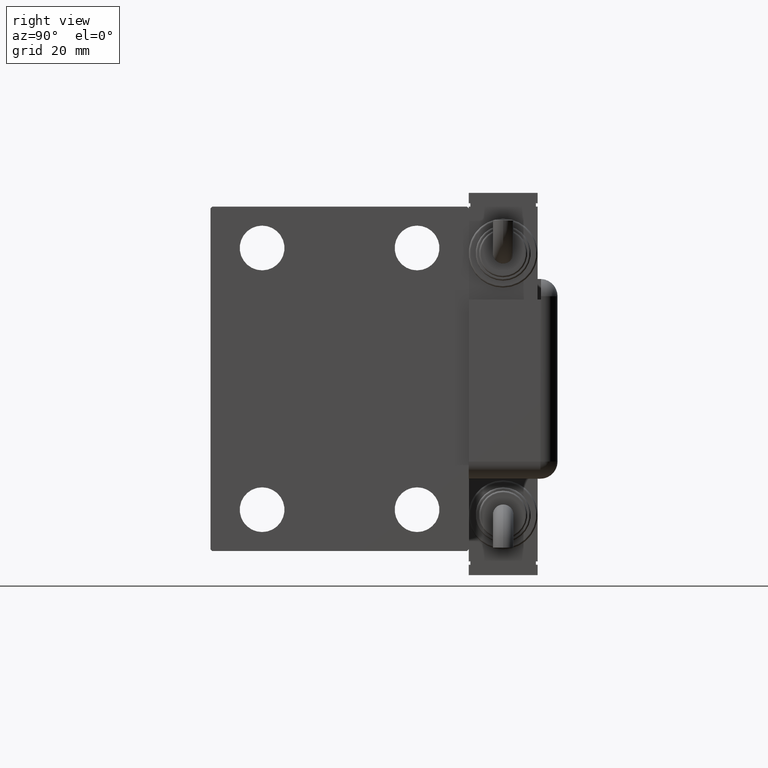
[diagram: clean part render]
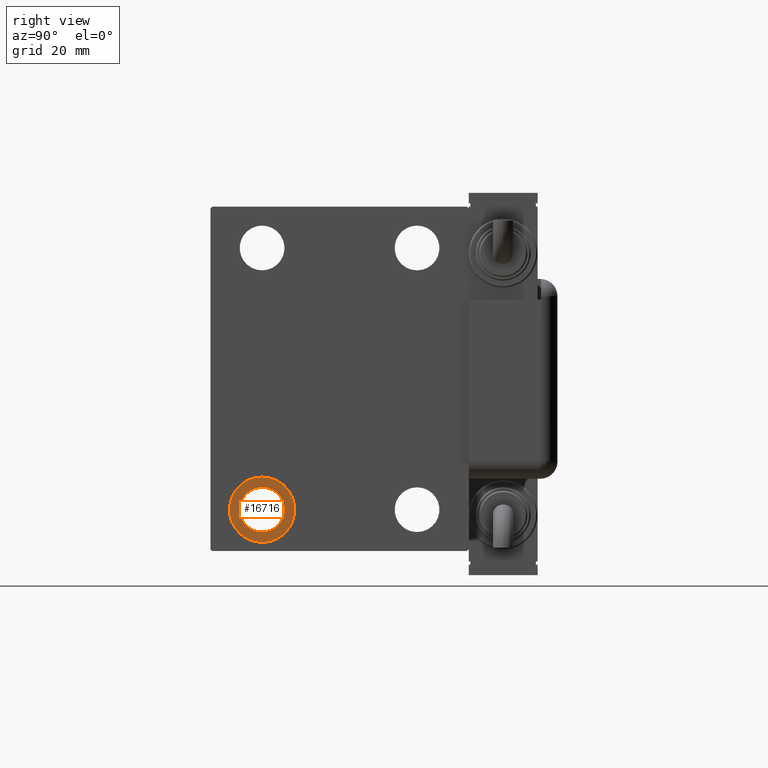
[diagram: same view with one face highlighted and labeled with its STEP entity id]
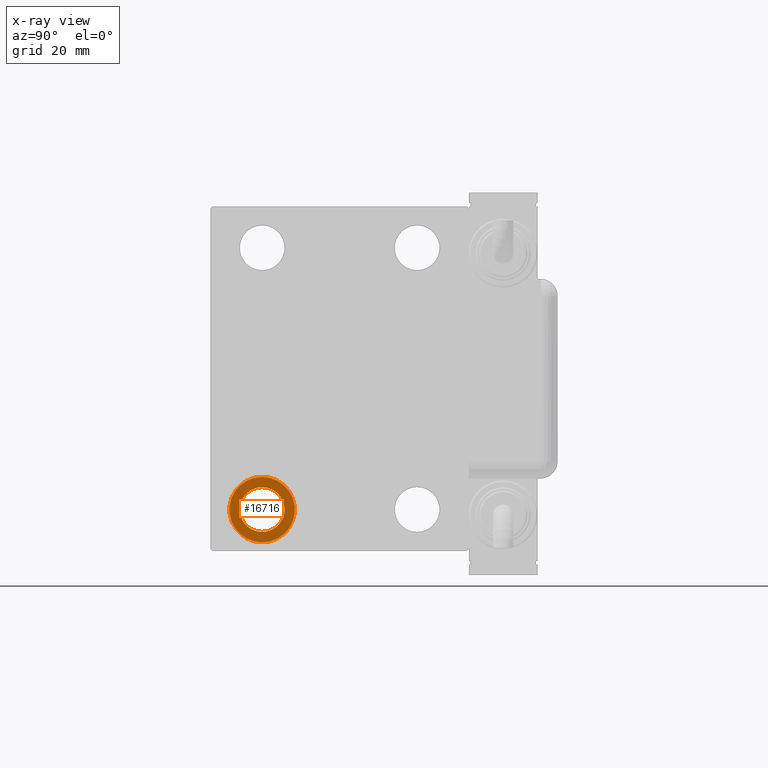
[diagram: x-ray of the same camera — body ghosted, the highlighted face saturated]
A machine part, right view. The second image highlights one B-rep face of the part: STEP entity #16716.
The next image is the same camera in x-ray: the body ghosted, the highlighted face saturated — about 0% of this face is hidden behind the body in this view.
In plain terms, the highlighted planar face has unit normal (1, 0, 0).
Its self-contained STEP definition (entity closure, byte-faithful):
#1739 = VERTEX_POINT ( 'NONE', #6548 ) ;
#5878 = EDGE_CURVE ( 'NONE', #49149, #59504, #58703, .T. ) ;
#6358 = EDGE_CURVE ( 'NONE', #53612, #1739, #37544, .T. ) ;
#6548 = CARTESIAN_POINT ( 'NONE',  ( 85.00000000000000000, -22.50000000000000711, -47.49999999999999289 ) ) ;
#6710 = CARTESIAN_POINT ( 'NONE',  ( 85.00000000000000000, -22.50000000000000711, -28.49999999999998934 ) ) ;
#7377 = FACE_OUTER_BOUND ( 'NONE', #23671, .T. ) ;
#9052 = DIRECTION ( 'NONE',  ( 0.000000000000000000, 0.000000000000000000, -1.000000000000000000 ) ) ;
#10897 = CIRCLE ( 'NONE', #56115, 6.499999999999999112 ) ;
#13989 = CIRCLE ( 'NONE', #29402, 9.500000000000001776 ) ;
#16716 = ADVANCED_FACE ( 'NONE', ( #7377, #25768 ), #30903, .T. ) ;
#17385 = EDGE_CURVE ( 'NONE', #59504, #49149, #10897, .T. ) ;
#18577 = ORIENTED_EDGE ( 'NONE', *, *, #17385, .T. ) ;
#19601 = EDGE_LOOP ( 'NONE', ( #18577, #36986 ) ) ;
#21794 = DIRECTION ( 'NONE',  ( -1.000000000000000000, -0.000000000000000000, -0.000000000000000000 ) ) ;
#23671 = EDGE_LOOP ( 'NONE', ( #37890, #56134 ) ) ;
#24582 = CARTESIAN_POINT ( 'NONE',  ( 85.00000000000000000, -22.50000000000000711, -44.49999999999999289 ) ) ;
#25768 = FACE_BOUND ( 'NONE', #19601, .T. ) ;
#27391 = EDGE_CURVE ( 'NONE', #1739, #53612, #13989, .T. ) ;
#27937 = CARTESIAN_POINT ( 'NONE',  ( 85.00000000000000000, -22.50000000000000711, -37.99999999999999289 ) ) ;
#28524 = DIRECTION ( 'NONE',  ( -1.000000000000000000, -0.000000000000000000, -0.000000000000000000 ) ) ;
#29402 = AXIS2_PLACEMENT_3D ( 'NONE', #43808, #21794, #40179 ) ;
#29861 = AXIS2_PLACEMENT_3D ( 'NONE', #54028, #39577, #30561 ) ;
#30561 = DIRECTION ( 'NONE',  ( 0.000000000000000000, 0.000000000000000000, 1.000000000000000000 ) ) ;
#30903 = PLANE ( 'NONE',  #37792 ) ;
#36488 = DIRECTION ( 'NONE',  ( -1.000000000000000000, -0.000000000000000000, -0.000000000000000000 ) ) ;
#36693 = DIRECTION ( 'NONE',  ( 0.000000000000000000, 0.000000000000000000, 1.000000000000000000 ) ) ;
#36986 = ORIENTED_EDGE ( 'NONE', *, *, #5878, .T. ) ;
#37544 = CIRCLE ( 'NONE', #29861, 9.500000000000001776 ) ;
#37792 = AXIS2_PLACEMENT_3D ( 'NONE', #39623, #41221, #36693 ) ;
#37890 = ORIENTED_EDGE ( 'NONE', *, *, #27391, .F. ) ;
#39577 = DIRECTION ( 'NONE',  ( -1.000000000000000000, -0.000000000000000000, -0.000000000000000000 ) ) ;
#39623 = CARTESIAN_POINT ( 'NONE',  ( 85.00000000000000000, 0.000000000000000000, 0.000000000000000000 ) ) ;
#40179 = DIRECTION ( 'NONE',  ( 0.000000000000000000, 0.000000000000000000, 1.000000000000000000 ) ) ;
#41221 = DIRECTION ( 'NONE',  ( 1.000000000000000000, 0.000000000000000000, -0.000000000000000000 ) ) ;
#43808 = CARTESIAN_POINT ( 'NONE',  ( 85.00000000000000000, -22.50000000000000711, -37.99999999999999289 ) ) ;
#45235 = AXIS2_PLACEMENT_3D ( 'NONE', #27937, #28524, #51425 ) ;
#49149 = VERTEX_POINT ( 'NONE', #24582 ) ;
#49822 = CARTESIAN_POINT ( 'NONE',  ( 85.00000000000000000, -22.50000000000000711, -31.49999999999999289 ) ) ;
#51425 = DIRECTION ( 'NONE',  ( 0.000000000000000000, 0.000000000000000000, -1.000000000000000000 ) ) ;
#53612 = VERTEX_POINT ( 'NONE', #6710 ) ;
#54028 = CARTESIAN_POINT ( 'NONE',  ( 85.00000000000000000, -22.50000000000000711, -37.99999999999999289 ) ) ;
#56115 = AXIS2_PLACEMENT_3D ( 'NONE', #58495, #36488, #9052 ) ;
#56134 = ORIENTED_EDGE ( 'NONE', *, *, #6358, .F. ) ;
#58495 = CARTESIAN_POINT ( 'NONE',  ( 85.00000000000000000, -22.50000000000000711, -37.99999999999999289 ) ) ;
#58703 = CIRCLE ( 'NONE', #45235, 6.499999999999999112 ) ;
#59504 = VERTEX_POINT ( 'NONE', #49822 ) ;